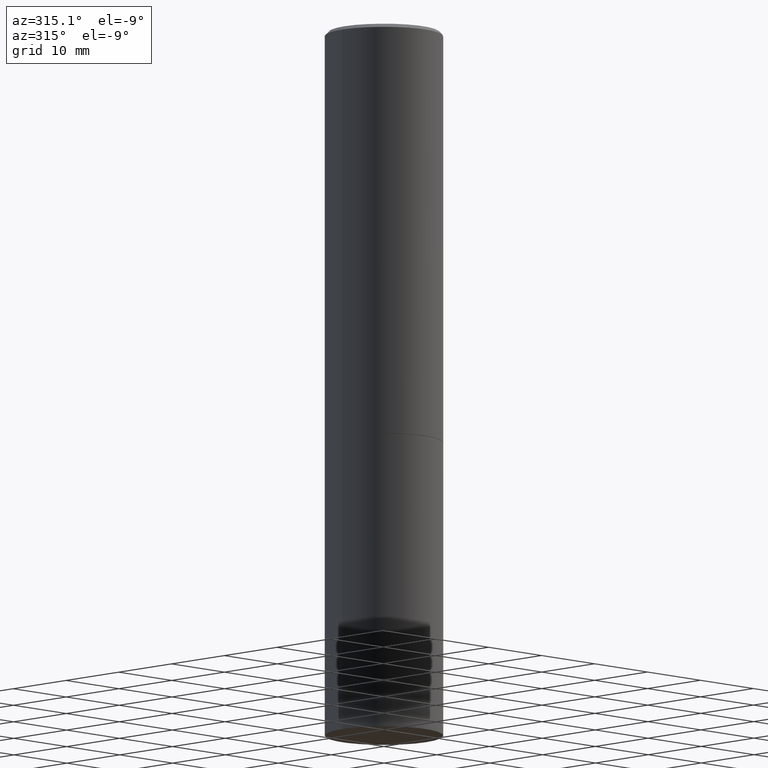
[diagram: clean part render]
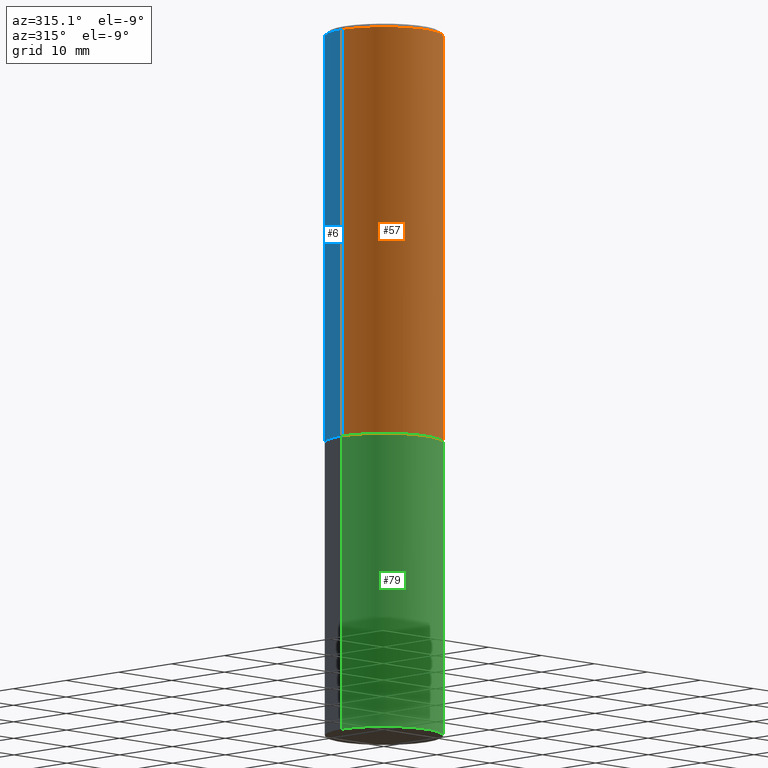
[diagram: same view with three faces highlighted in distinct colors, each labeled with its STEP entity id]
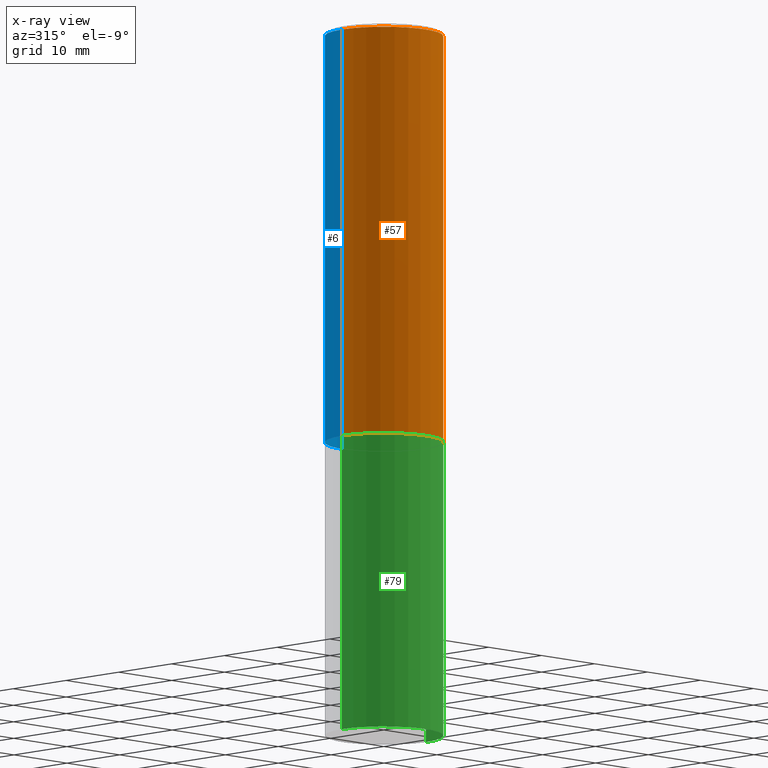
[diagram: x-ray of the same camera — body ghosted, the three highlighted faces saturated]
A machine part, auxiliary view with three faces highlighted in distinct colors.
The next image is the same camera in x-ray (body ghosted, the three faces saturated) — at least one of them is partly hidden behind the body in this view.
Their STEP definitions:

[orange] entity #57 — the highlighted cylindrical surface (partial cylindrical patch) has radius 7.9375 mm, axis along (-0, 0, 1).
#18 = AXIS2_PLACEMENT_3D ( 'NONE', #116, #148, #216 ) ;
#35 = CYLINDRICAL_SURFACE ( 'NONE', #100, 0.3124999999999998890 ) ;
#48 = CARTESIAN_POINT ( 'NONE',  ( 0.3124999999999998890, -2.182175836776957558E-15, 1.523805242436229235E-29 ) ) ;
#54 = ORIENTED_EDGE ( 'NONE', *, *, #184, .T. ) ;
#57 = ADVANCED_FACE ( 'NONE', ( #286 ), #35, .T. ) ;
#59 = ORIENTED_EDGE ( 'NONE', *, *, #333, .T. ) ;
#61 = EDGE_CURVE ( 'NONE', #115, #272, #327, .T. ) ;
#70 = DIRECTION ( 'NONE',  ( 1.000000000000000000, -6.982962677686266711E-15, 4.876176775795935232E-29 ) ) ;
#78 = VECTOR ( 'NONE', #161, 39.37007874015748143 ) ;
#84 = ORIENTED_EDGE ( 'NONE', *, *, #61, .F. ) ;
#94 = VERTEX_POINT ( 'NONE', #293 ) ;
#98 = LINE ( 'NONE', #48, #78 ) ;
#100 = AXIS2_PLACEMENT_3D ( 'NONE', #201, #283, #70 ) ;
#115 = VERTEX_POINT ( 'NONE', #224 ) ;
#116 = CARTESIAN_POINT ( 'NONE',  ( 5.347017544723800702E-29, -7.634123947380537240E-15, -2.186500000000000110 ) ) ;
#118 = DIRECTION ( 'NONE',  ( 1.000000000000000000, -6.982962677686265133E-15, 0.000000000000000000 ) ) ;
#130 = CIRCLE ( 'NONE', #186, 0.3124999999999998335 ) ;
#133 = EDGE_CURVE ( 'NONE', #272, #94, #130, .T. ) ;
#148 = DIRECTION ( 'NONE',  ( -2.445468806185136597E-29, 3.491481338843145583E-15, 1.000000000000000000 ) ) ;
#156 = DIRECTION ( 'NONE',  ( -2.445468806185136877E-29, 3.491481338843145188E-15, 1.000000000000000000 ) ) ;
#157 = DIRECTION ( 'NONE',  ( -2.445468806185136597E-29, 3.491481338843145583E-15, 1.000000000000000000 ) ) ;
#161 = DIRECTION ( 'NONE',  ( -2.445468806185136877E-29, 3.491481338843145188E-15, 1.000000000000000000 ) ) ;
#168 = ORIENTED_EDGE ( 'NONE', *, *, #133, .F. ) ;
#173 = CARTESIAN_POINT ( 'NONE',  ( 0.3124999999999999445, -9.816299784157495587E-15, -2.186500000000000110 ) ) ;
#184 = EDGE_CURVE ( 'NONE', #312, #94, #98, .T. ) ;
#186 = AXIS2_PLACEMENT_3D ( 'NONE', #202, #157, #118 ) ;
#201 = CARTESIAN_POINT ( 'NONE',  ( 0.000000000000000000, 0.000000000000000000, 0.000000000000000000 ) ) ;
#202 = CARTESIAN_POINT ( 'NONE',  ( 4.890937612370293302E-31, -6.982962677686318726E-17, -0.02000000000000008021 ) ) ;
#216 = DIRECTION ( 'NONE',  ( 1.000000000000000000, -6.982962677686266711E-15, 0.000000000000000000 ) ) ;
#224 = CARTESIAN_POINT ( 'NONE',  ( -0.3124999999999999445, -1.631530737828387780E-15, -2.186500000000000110 ) ) ;
#226 = EDGE_LOOP ( 'NONE', ( #84, #59, #54, #168 ) ) ;
#252 = CARTESIAN_POINT ( 'NONE',  ( -0.3124999999999998890, 2.220446049250312292E-15, -1.537167215704657391E-29 ) ) ;
#272 = VERTEX_POINT ( 'NONE', #323 ) ;
#280 = VECTOR ( 'NONE', #156, 39.37007874015748143 ) ;
#283 = DIRECTION ( 'NONE',  ( -2.445468806185136597E-29, 3.491481338843145583E-15, 1.000000000000000000 ) ) ;
#286 = FACE_OUTER_BOUND ( 'NONE', #226, .T. ) ;
#293 = CARTESIAN_POINT ( 'NONE',  ( 0.3124999999999998335, -2.213735251080465334E-15, -0.02000000000000008021 ) ) ;
#312 = VERTEX_POINT ( 'NONE', #173 ) ;
#323 = CARTESIAN_POINT ( 'NONE',  ( -0.3124999999999998335, 2.112346210000093866E-15, -0.02000000000000008021 ) ) ;
#327 = LINE ( 'NONE', #252, #280 ) ;
#333 = EDGE_CURVE ( 'NONE', #115, #312, #336, .T. ) ;
#336 = CIRCLE ( 'NONE', #18, 0.3124999999999999445 ) ;

[blue] entity #6 — the highlighted cylindrical surface (partial cylindrical patch) has radius 7.9375 mm, axis along (-0, 0, 1).
#6 = ADVANCED_FACE ( 'NONE', ( #266 ), #269, .T. ) ;
#20 = EDGE_CURVE ( 'NONE', #312, #115, #53, .T. ) ;
#39 = DIRECTION ( 'NONE',  ( -2.445468806185136597E-29, 3.491481338843145583E-15, 1.000000000000000000 ) ) ;
#48 = CARTESIAN_POINT ( 'NONE',  ( 0.3124999999999998890, -2.182175836776957558E-15, 1.523805242436229235E-29 ) ) ;
#53 = CIRCLE ( 'NONE', #325, 0.3124999999999999445 ) ;
#60 = DIRECTION ( 'NONE',  ( 1.000000000000000000, -6.982962677686266711E-15, 0.000000000000000000 ) ) ;
#61 = EDGE_CURVE ( 'NONE', #115, #272, #327, .T. ) ;
#78 = VECTOR ( 'NONE', #161, 39.37007874015748143 ) ;
#80 = CIRCLE ( 'NONE', #278, 0.3124999999999998335 ) ;
#88 = DIRECTION ( 'NONE',  ( -2.445468806185136597E-29, 3.491481338843145583E-15, 1.000000000000000000 ) ) ;
#94 = VERTEX_POINT ( 'NONE', #293 ) ;
#98 = LINE ( 'NONE', #48, #78 ) ;
#115 = VERTEX_POINT ( 'NONE', #224 ) ;
#144 = DIRECTION ( 'NONE',  ( 1.000000000000000000, -6.982962677686266711E-15, 4.876176775795935232E-29 ) ) ;
#156 = DIRECTION ( 'NONE',  ( -2.445468806185136877E-29, 3.491481338843145188E-15, 1.000000000000000000 ) ) ;
#161 = DIRECTION ( 'NONE',  ( -2.445468806185136877E-29, 3.491481338843145188E-15, 1.000000000000000000 ) ) ;
#164 = ORIENTED_EDGE ( 'NONE', *, *, #61, .T. ) ;
#165 = ORIENTED_EDGE ( 'NONE', *, *, #20, .T. ) ;
#173 = CARTESIAN_POINT ( 'NONE',  ( 0.3124999999999999445, -9.816299784157495587E-15, -2.186500000000000110 ) ) ;
#184 = EDGE_CURVE ( 'NONE', #312, #94, #98, .T. ) ;
#189 = ORIENTED_EDGE ( 'NONE', *, *, #184, .F. ) ;
#190 = DIRECTION ( 'NONE',  ( -2.445468806185136597E-29, 3.491481338843145583E-15, 1.000000000000000000 ) ) ;
#194 = ORIENTED_EDGE ( 'NONE', *, *, #361, .F. ) ;
#221 = DIRECTION ( 'NONE',  ( 1.000000000000000000, -6.982962677686265133E-15, 0.000000000000000000 ) ) ;
#224 = CARTESIAN_POINT ( 'NONE',  ( -0.3124999999999999445, -1.631530737828387780E-15, -2.186500000000000110 ) ) ;
#252 = CARTESIAN_POINT ( 'NONE',  ( -0.3124999999999998890, 2.220446049250312292E-15, -1.537167215704657391E-29 ) ) ;
#260 = AXIS2_PLACEMENT_3D ( 'NONE', #335, #88, #144 ) ;
#266 = FACE_OUTER_BOUND ( 'NONE', #305, .T. ) ;
#269 = CYLINDRICAL_SURFACE ( 'NONE', #260, 0.3124999999999998890 ) ;
#272 = VERTEX_POINT ( 'NONE', #323 ) ;
#278 = AXIS2_PLACEMENT_3D ( 'NONE', #290, #39, #221 ) ;
#280 = VECTOR ( 'NONE', #156, 39.37007874015748143 ) ;
#290 = CARTESIAN_POINT ( 'NONE',  ( 4.890937612370293302E-31, -6.982962677686318726E-17, -0.02000000000000008021 ) ) ;
#293 = CARTESIAN_POINT ( 'NONE',  ( 0.3124999999999998335, -2.213735251080465334E-15, -0.02000000000000008021 ) ) ;
#305 = EDGE_LOOP ( 'NONE', ( #165, #164, #194, #189 ) ) ;
#312 = VERTEX_POINT ( 'NONE', #173 ) ;
#323 = CARTESIAN_POINT ( 'NONE',  ( -0.3124999999999998335, 2.112346210000093866E-15, -0.02000000000000008021 ) ) ;
#325 = AXIS2_PLACEMENT_3D ( 'NONE', #340, #190, #60 ) ;
#327 = LINE ( 'NONE', #252, #280 ) ;
#335 = CARTESIAN_POINT ( 'NONE',  ( 0.000000000000000000, 0.000000000000000000, 0.000000000000000000 ) ) ;
#340 = CARTESIAN_POINT ( 'NONE',  ( 5.347017544723800702E-29, -7.634123947380537240E-15, -2.186500000000000110 ) ) ;
#361 = EDGE_CURVE ( 'NONE', #94, #272, #80, .T. ) ;

[green] entity #79 — the highlighted cylindrical surface (partial cylindrical patch) has radius 7.9375 mm, axis along (-0, 0, 1).
#1 = AXIS2_PLACEMENT_3D ( 'NONE', #196, #319, #249 ) ;
#8 = VERTEX_POINT ( 'NONE', #366 ) ;
#10 = CARTESIAN_POINT ( 'NONE',  ( -0.3125000000000000000, -8.144889175440275750E-15, -2.187500000000000000 ) ) ;
#13 = VECTOR ( 'NONE', #91, 39.37007874015748143 ) ;
#49 = DIRECTION ( 'NONE',  ( -2.445468806185136597E-29, 3.491481338843145583E-15, 1.000000000000000000 ) ) ;
#79 = ADVANCED_FACE ( 'NONE', ( #324 ), #175, .T. ) ;
#83 = VERTEX_POINT ( 'NONE', #171 ) ;
#91 = DIRECTION ( 'NONE',  ( -2.445468806185136877E-29, 3.491481338843145188E-15, 1.000000000000000000 ) ) ;
#114 = VERTEX_POINT ( 'NONE', #10 ) ;
#121 = LINE ( 'NONE', #326, #274 ) ;
#138 = AXIS2_PLACEMENT_3D ( 'NONE', #150, #257, #317 ) ;
#150 = CARTESIAN_POINT ( 'NONE',  ( 0.000000000000000000, 0.000000000000000000, 0.000000000000000000 ) ) ;
#152 = LINE ( 'NONE', #223, #13 ) ;
#153 = EDGE_CURVE ( 'NONE', #114, #8, #181, .T. ) ;
#162 = DIRECTION ( 'NONE',  ( 1.000000000000000000, -6.982962677686269077E-15, 0.000000000000000000 ) ) ;
#163 = CIRCLE ( 'NONE', #1, 0.3125000000000000000 ) ;
#171 = CARTESIAN_POINT ( 'NONE',  ( 0.3125000000000000000, -1.527523085743875734E-14, -3.750000000000000000 ) ) ;
#175 = CYLINDRICAL_SURFACE ( 'NONE', #138, 0.3125000000000000000 ) ;
#181 = CIRCLE ( 'NONE', #308, 0.3125000000000000000 ) ;
#196 = CARTESIAN_POINT ( 'NONE',  ( 9.170508023194262238E-29, -1.309305502066179741E-14, -3.750000000000000000 ) ) ;
#223 = CARTESIAN_POINT ( 'NONE',  ( 0.3125000000000000000, -2.182175836776958347E-15, 1.523805242436230075E-29 ) ) ;
#229 = DIRECTION ( 'NONE',  ( -2.445468806185136877E-29, 3.491481338843145188E-15, 1.000000000000000000 ) ) ;
#232 = CARTESIAN_POINT ( 'NONE',  ( 5.349463013529986305E-29, -7.637615428719381825E-15, -2.187500000000000000 ) ) ;
#233 = CARTESIAN_POINT ( 'NONE',  ( -0.3125000000000000000, -8.144889175440275750E-15, -3.750000000000000000 ) ) ;
#243 = VERTEX_POINT ( 'NONE', #233 ) ;
#245 = ORIENTED_EDGE ( 'NONE', *, *, #153, .F. ) ;
#249 = DIRECTION ( 'NONE',  ( 1.000000000000000000, -6.982962677686269077E-15, 0.000000000000000000 ) ) ;
#257 = DIRECTION ( 'NONE',  ( -2.445468806185136597E-29, 3.491481338843145583E-15, 1.000000000000000000 ) ) ;
#258 = EDGE_CURVE ( 'NONE', #243, #114, #121, .T. ) ;
#262 = EDGE_CURVE ( 'NONE', #83, #8, #152, .T. ) ;
#274 = VECTOR ( 'NONE', #229, 39.37007874015748143 ) ;
#291 = EDGE_LOOP ( 'NONE', ( #318, #313, #307, #245 ) ) ;
#307 = ORIENTED_EDGE ( 'NONE', *, *, #262, .T. ) ;
#308 = AXIS2_PLACEMENT_3D ( 'NONE', #232, #49, #162 ) ;
#310 = EDGE_CURVE ( 'NONE', #243, #83, #163, .T. ) ;
#313 = ORIENTED_EDGE ( 'NONE', *, *, #310, .T. ) ;
#317 = DIRECTION ( 'NONE',  ( 1.000000000000000000, -6.982962677686266711E-15, 4.876176775795936353E-29 ) ) ;
#318 = ORIENTED_EDGE ( 'NONE', *, *, #258, .F. ) ;
#319 = DIRECTION ( 'NONE',  ( -2.445468806185136597E-29, 3.491481338843145583E-15, 1.000000000000000000 ) ) ;
#324 = FACE_OUTER_BOUND ( 'NONE', #291, .T. ) ;
#326 = CARTESIAN_POINT ( 'NONE',  ( -0.3125000000000000000, 2.220446049250313081E-15, -1.537167215704658232E-29 ) ) ;
#366 = CARTESIAN_POINT ( 'NONE',  ( 0.3125000000000000000, -9.819791265496340172E-15, -2.187500000000000000 ) ) ;